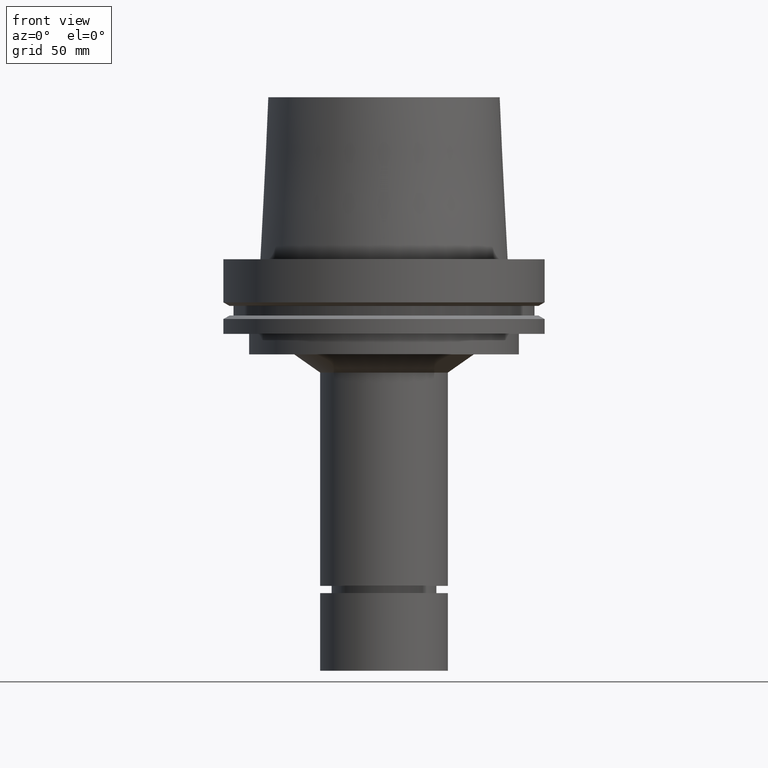
[diagram: clean part render]
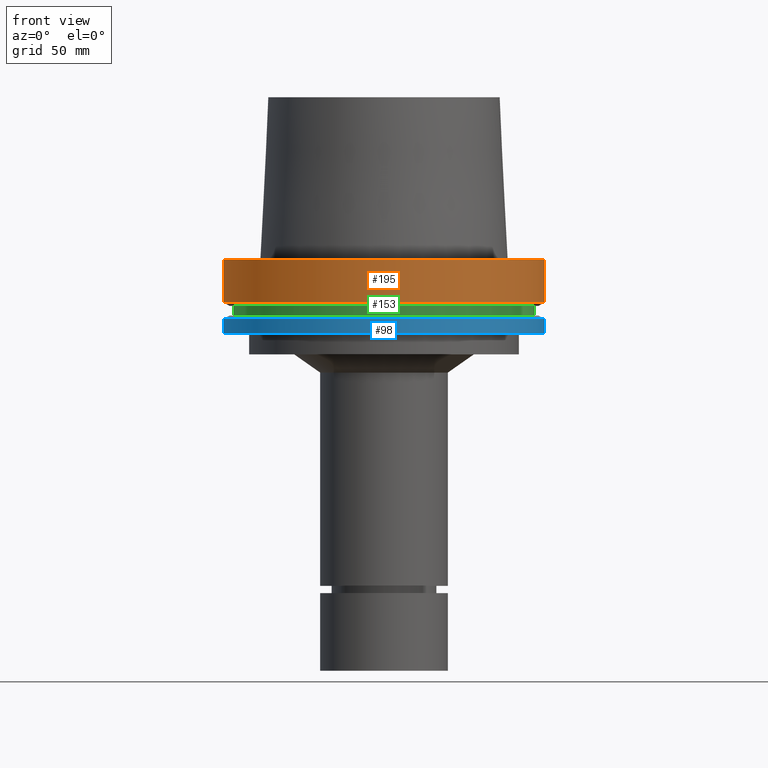
[diagram: same view with three faces highlighted in distinct colors, each labeled with its STEP entity id]
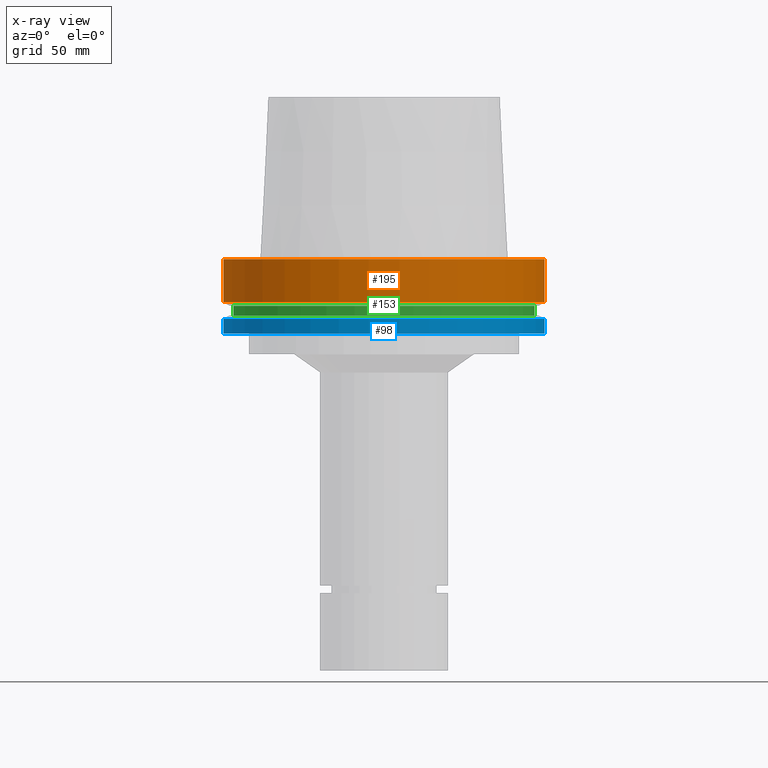
[diagram: x-ray of the same camera — body ghosted, the three highlighted faces saturated]
A machine part, front view with three faces highlighted in distinct colors.
The next image is the same camera in x-ray (body ghosted, the three faces saturated) — at least one of them is partly hidden behind the body in this view.
Their STEP definitions:

[orange] entity #195 — the highlighted cylindrical surface (bore or boss wall) has radius 62.5 mm, axis along (0, -0, -1).
#135=EDGE_CURVE('Unnamed[1]',#304,#304,#305,.T.);
#146=EDGE_CURVE('Unnamed[1]',#320,#320,#321,.T.);
#195=ADVANCED_FACE('Unnamed[1]',(#397,#398),#399,.T.);
#304=VERTEX_POINT('',#523);
#305=CIRCLE('',#524,62.5000000000002);
#320=VERTEX_POINT('',#543);
#321=CIRCLE('',#544,62.5);
#397=FACE_BOUND('',#639,.T.);
#398=FACE_BOUND('',#640,.T.);
#399=CYLINDRICAL_SURFACE('',#641,62.5000000000001);
#523=CARTESIAN_POINT('',(-5.58935713239973E-030,62.5000000000002,8.63540424946709E-014));
#524=AXIS2_PLACEMENT_3D('',#743,#744,#745);
#543=CARTESIAN_POINT('',(1.02578894188643E-015,62.5,-16.7524047358084));
#544=AXIS2_PLACEMENT_3D('',#762,#763,#764);
#639=EDGE_LOOP('',(#849));
#640=EDGE_LOOP('',(#850));
#641=AXIS2_PLACEMENT_3D('',#851,#852,#853);
#743=CARTESIAN_POINT('',(-8.7016388700601E-030,4.8531250000003E-015,1.4210854715202E-013));
#744=DIRECTION('',(6.12323399573677E-017,-7.02088891513837E-016,-1.0));
#745=DIRECTION('',(3.81633929546977E-032,1.0,-7.02088891513837E-016));
#762=CARTESIAN_POINT('',(1.02578894188643E-015,-6.90855227115464E-015,-16.7524047358083));
#763=DIRECTION('',(6.12323399573677E-017,-7.02088891513837E-016,-1.0));
#764=DIRECTION('',(3.81633929546977E-032,1.0,-7.02088891513837E-016));
#849=ORIENTED_EDGE('',*,*,#146,.F.);
#850=ORIENTED_EDGE('',*,*,#135,.T.);
#851=CARTESIAN_POINT('',(5.12894470943213E-016,-1.02771363557719E-015,-8.37620236790411));
#852=DIRECTION('',(6.12323399573677E-017,-7.02088891513837E-016,-1.0));
#853=DIRECTION('',(3.81633929546977E-032,1.0,-7.02088891513837E-016));

[blue] entity #98 — the highlighted cylindrical surface (bore or boss wall) has radius 62.5 mm, axis along (0, -0, -1).
#98=ADVANCED_FACE('Unnamed[1]',(#246,#247),#248,.T.);
#109=EDGE_CURVE('Unnamed[1]',#264,#264,#265,.T.);
#190=EDGE_CURVE('Unnamed[1]',#390,#390,#391,.T.);
#246=FACE_BOUND('',#451,.T.);
#247=FACE_BOUND('',#452,.T.);
#248=CYLINDRICAL_SURFACE('',#453,62.5);
#264=VERTEX_POINT('',#474);
#265=CIRCLE('',#475,62.5);
#390=VERTEX_POINT('',#630);
#391=CIRCLE('',#631,62.5);
#451=EDGE_LOOP('',(#680));
#452=EDGE_LOOP('',(#681));
#453=AXIS2_PLACEMENT_3D('',#682,#683,#684);
#474=CARTESIAN_POINT('',(1.42350465640827E-015,62.5,-23.2475952641916));
#475=AXIS2_PLACEMENT_3D('',#700,#701,#702);
#630=CARTESIAN_POINT('',(1.77573785876366E-015,62.5,-29.0));
#631=AXIS2_PLACEMENT_3D('',#842,#843,#844);
#680=ORIENTED_EDGE('',*,*,#190,.F.);
#681=ORIENTED_EDGE('',*,*,#109,.T.);
#682=CARTESIAN_POINT('',(1.59962125758596E-015,-1.34881031216497E-014,-26.1237976320957));
#683=DIRECTION('',(6.12323399573677E-017,-7.02088891513837E-016,-1.0));
#684=DIRECTION('',(3.81633929546977E-032,1.0,-7.02088891513837E-016));
#700=CARTESIAN_POINT('',(1.42350465640827E-015,-1.14687533893984E-014,-23.2475952641915));
#701=DIRECTION('',(6.12323399573677E-017,-7.02088891513837E-016,-1.0));
#702=DIRECTION('',(3.81633929546977E-032,1.0,-7.02088891513837E-016));
#842=CARTESIAN_POINT('',(1.77573785876366E-015,-1.55074528539011E-014,-29.0));
#843=DIRECTION('',(6.12323399573676E-017,-7.02088891513837E-016,-1.0));
#844=DIRECTION('',(3.81633929546977E-032,1.0,-7.02088891513837E-016));

[green] entity #153 — the highlighted cylindrical surface (bore or boss wall) has radius 58.5 mm, axis along (0, -0, -1).
#105=EDGE_CURVE('Unnamed[1]',#258,#258,#259,.T.);
#114=EDGE_CURVE('Unnamed[1]',#272,#272,#273,.T.);
#153=ADVANCED_FACE('Unnamed[1]',(#330,#331),#332,.T.);
#258=VERTEX_POINT('',#466);
#259=CIRCLE('',#467,58.4999999999998);
#272=VERTEX_POINT('',#484);
#273=CIRCLE('',#485,58.5000000000001);
#330=FACE_BOUND('',#556,.T.);
#331=FACE_BOUND('',#557,.T.);
#332=CYLINDRICAL_SURFACE('',#558,58.4999999999999);
#466=CARTESIAN_POINT('',(1.33945743656732E-015,58.4999999999998,-21.8749999999984));
#467=AXIS2_PLACEMENT_3D('',#694,#695,#696);
#484=CARTESIAN_POINT('',(1.10983616172739E-015,58.5,-18.1250000000017));
#485=AXIS2_PLACEMENT_3D('',#709,#710,#711);
#556=EDGE_LOOP('',(#772));
#557=EDGE_LOOP('',(#773));
#558=AXIS2_PLACEMENT_3D('',#774,#775,#776);
#694=CARTESIAN_POINT('',(1.33945743656732E-015,-1.05050695018638E-014,-21.8749999999983));
#695=DIRECTION('',(6.12323399573677E-017,-7.02088891513837E-016,-1.0));
#696=DIRECTION('',(3.81633929546977E-032,1.0,-7.02088891513837E-016));
#709=CARTESIAN_POINT('',(1.10983616172739E-015,-7.87223615868924E-015,-18.1250000000016));
#710=DIRECTION('',(6.12323399573676E-017,-7.02088891513837E-016,-1.0));
#711=DIRECTION('',(3.81633929546977E-032,1.0,-7.02088891513837E-016));
#772=ORIENTED_EDGE('',*,*,#105,.F.);
#773=ORIENTED_EDGE('',*,*,#114,.T.);
#774=CARTESIAN_POINT('',(1.22464679914735E-015,-9.18865283027653E-015,-20.0));
#775=DIRECTION('',(6.12323399573676E-017,-7.02088891513837E-016,-1.0));
#776=DIRECTION('',(3.81633929546977E-032,1.0,-7.02088891513837E-016));